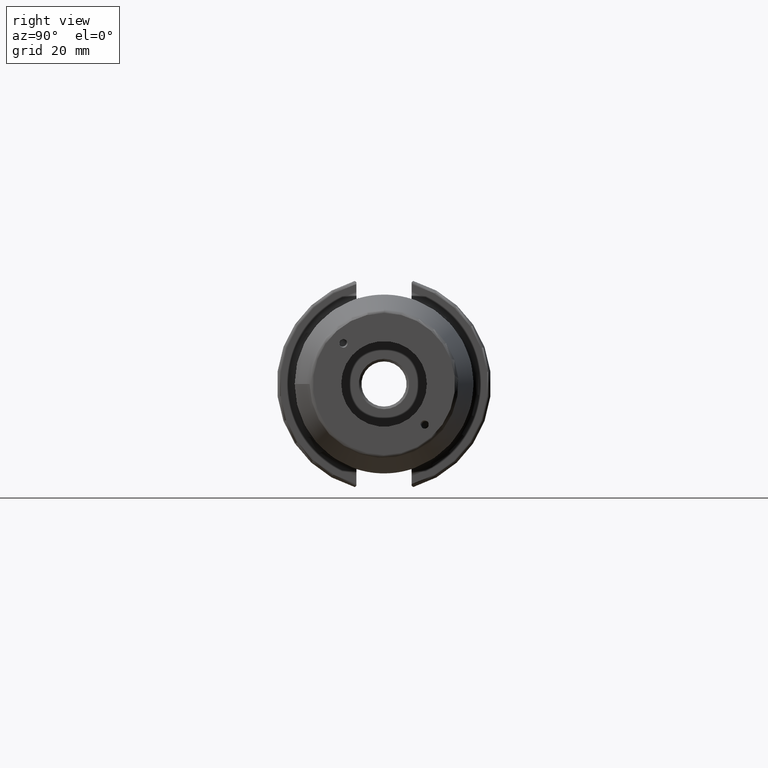
[diagram: clean part render]
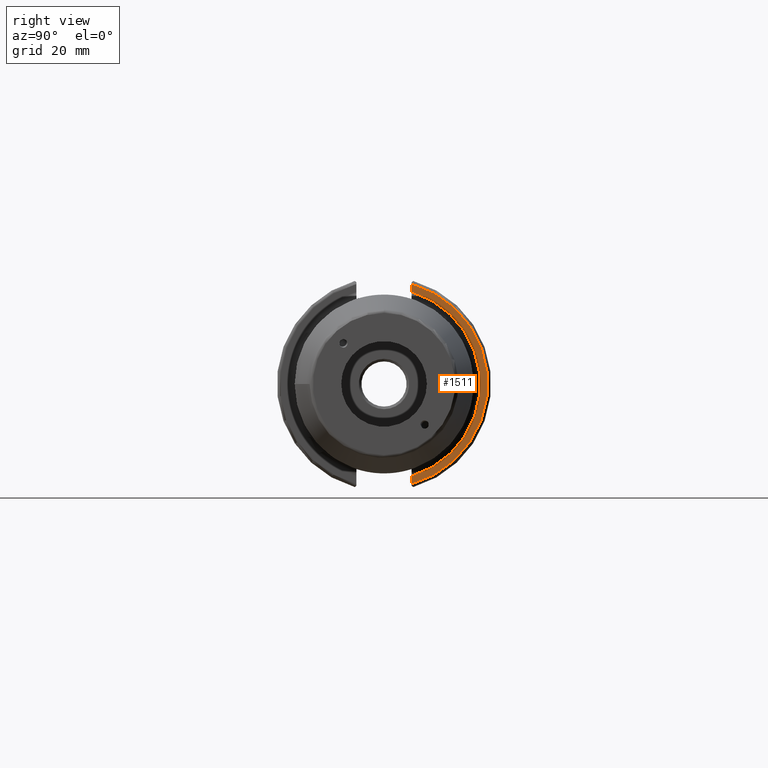
[diagram: same view with one face highlighted and labeled with its STEP entity id]
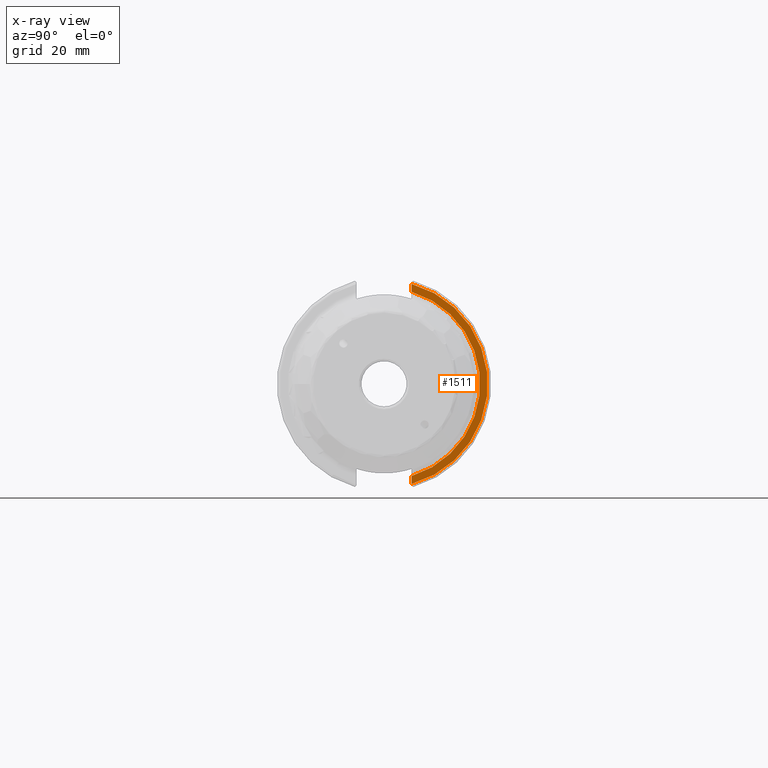
[diagram: x-ray of the same camera — body ghosted, the highlighted face saturated]
A machine part, right view. The second image highlights one B-rep face of the part: STEP entity #1511.
The next image is the same camera in x-ray: the body ghosted, the highlighted face saturated — about 0% of this face is hidden behind the body in this view.
In plain terms, the highlighted planar face has unit normal (1, 0, 0).
Its self-contained STEP definition (entity closure, byte-faithful):
#51=PLANE('',#1647);
#144=FACE_OUTER_BOUND('',#239,.T.);
#239=EDGE_LOOP('',(#1076,#1077,#1078,#1079));
#332=CIRCLE('',#1631,28.5);
#341=CIRCLE('',#1648,30.75);
#409=LINE('',#2496,#492);
#410=LINE('',#2499,#493);
#492=VECTOR('',#1894,10.);
#493=VECTOR('',#1897,10.);
#624=VERTEX_POINT('',#2369);
#625=VERTEX_POINT('',#2380);
#638=VERTEX_POINT('',#2495);
#639=VERTEX_POINT('',#2497);
#789=EDGE_CURVE('',#624,#625,#332,.T.);
#808=EDGE_CURVE('',#624,#638,#409,.T.);
#809=EDGE_CURVE('',#639,#638,#341,.T.);
#810=EDGE_CURVE('',#639,#625,#410,.T.);
#1076=ORIENTED_EDGE('',*,*,#789,.F.);
#1077=ORIENTED_EDGE('',*,*,#808,.T.);
#1078=ORIENTED_EDGE('',*,*,#809,.F.);
#1079=ORIENTED_EDGE('',*,*,#810,.T.);
#1511=ADVANCED_FACE('',(#144),#51,.T.);
#1631=AXIS2_PLACEMENT_3D('',#2381,#1855,#1856);
#1647=AXIS2_PLACEMENT_3D('',#2494,#1892,#1893);
#1648=AXIS2_PLACEMENT_3D('',#2498,#1895,#1896);
#1855=DIRECTION('center_axis',(1.,0.,0.));
#1856=DIRECTION('ref_axis',(0.,0.999990043367962,0.00446241693951042));
#1892=DIRECTION('center_axis',(1.,0.,0.));
#1893=DIRECTION('ref_axis',(0.,0.,-1.));
#1894=DIRECTION('',(0.,0.,-1.));
#1895=DIRECTION('center_axis',(-1.,0.,0.));
#1896=DIRECTION('ref_axis',(0.,1.,-6.12323399573677E-17));
#1897=DIRECTION('',(0.,0.,-1.));
#2369=CARTESIAN_POINT('',(19.05,8.19,-27.2978735435565));
#2380=CARTESIAN_POINT('',(19.05,8.19,27.2978735435565));
#2381=CARTESIAN_POINT('Origin',(19.05,0.,0.));
#2494=CARTESIAN_POINT('Origin',(19.05,0.,0.));
#2495=CARTESIAN_POINT('',(19.05,8.19,-29.6392712461019));
#2496=CARTESIAN_POINT('',(19.05,8.19,-11.3));
#2497=CARTESIAN_POINT('',(19.05,8.19,29.6392712461019));
#2498=CARTESIAN_POINT('Origin',(19.05,0.,0.));
#2499=CARTESIAN_POINT('',(19.05,8.19,12.5));